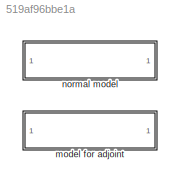
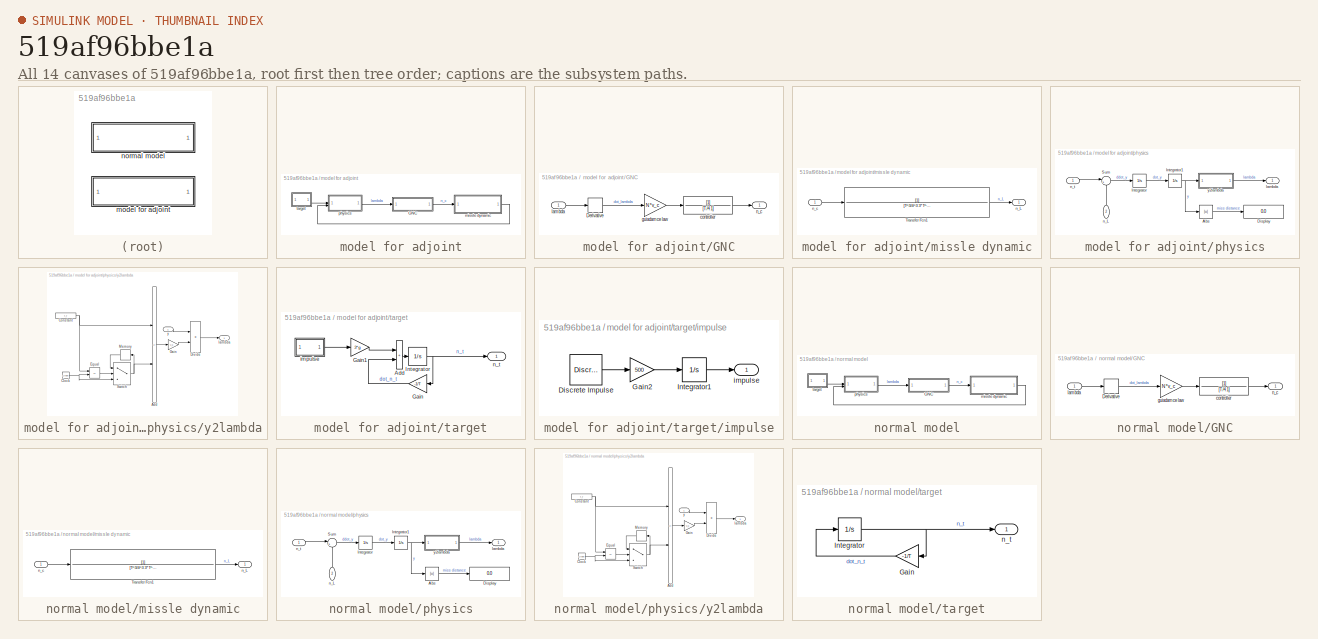
[diagram: thumbnail index - all 14 canvases of the model, root first then tree order]
MODEL slx_519af96bbe1a
KIND model
CONFIG AbsTol = auto
CONFIG EnableMultiTasking = off
CONFIG FixedStep = 0.002
CONFIG InitFcn = init;
CONFIG MaxStep = auto
CONFIG MinStep = auto
CONFIG RelTol = 1e-3
CONFIG SampleTimeConstraint = Unconstrained
CONFIG SolverName = ode4
CONFIG StartTime = 0.0
CONFIG StopTime = 15
BLOCK [SubSystem] model for adjoint
BLOCK [SubSystem] model for adjoint/GNC
BLOCK [Derivative] model for adjoint/GNC/Derivative
BLOCK [TransferFcn] model for adjoint/GNC/controller
  Denominator = [T/4 1]
BLOCK [Gain] model for adjoint/GNC/guiadamce law
  Gain = N*v_c
BLOCK [Inport] model for adjoint/GNC/lambda
BLOCK [Outport] model for adjoint/GNC/n_c
BLOCK [SubSystem] model for adjoint/missle dynamic
BLOCK [TransferFcn] model for adjoint/missle dynamic/Transfer Fcn1
  Denominator = [T^3/4^3 3*T^2/4^2 3*T/4 1]
BLOCK [Outport] model for adjoint/missle dynamic/n_L
BLOCK [Inport] model for adjoint/missle dynamic/n_c
BLOCK [SubSystem] model for adjoint/physics
BLOCK [Abs] model for adjoint/physics/Abs
  SaturateOnIntegerOverflow = off
BLOCK [Display] model for adjoint/physics/Display
  Decimation = 1
BLOCK [Integrator] model for adjoint/physics/Integrator
BLOCK [Integrator] model for adjoint/physics/Integrator1
BLOCK [Sum] model for adjoint/physics/Sum
  Inputs = |+-
BLOCK [Outport] model for adjoint/physics/lambda
BLOCK [Inport] model for adjoint/physics/n_L
  NameLocation = right
  Port = 2
BLOCK [Inport] model for adjoint/physics/n_t
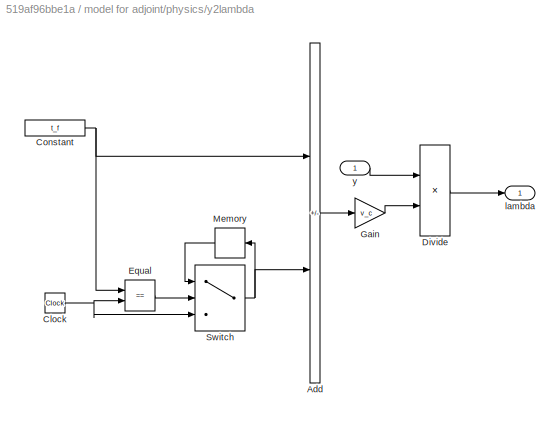
BLOCK [SubSystem] model for adjoint/physics/y2lambda
BLOCK [Sum] model for adjoint/physics/y2lambda/Add
  IconShape = rectangular
  Inputs = +-
BLOCK [Clock] model for adjoint/physics/y2lambda/Clock
BLOCK [Constant] model for adjoint/physics/y2lambda/Constant
  Value = t_f
BLOCK [Product] model for adjoint/physics/y2lambda/Divide
  Inputs = */
BLOCK [RelationalOperator] model for adjoint/physics/y2lambda/Equal
  InputSameDT = off
  Operator = ==
  OutDataTypeStr = boolean
  RndMeth = Simplest
BLOCK [Gain] model for adjoint/physics/y2lambda/Gain
  Gain = v_c
BLOCK [Memory] model for adjoint/physics/y2lambda/Memory
  NameLocation = top
BLOCK [Switch] model for adjoint/physics/y2lambda/Switch
  Criteria = u2 > Threshold
  InputSameDT = off
  SaturateOnIntegerOverflow = off
BLOCK [Outport] model for adjoint/physics/y2lambda/lambda
BLOCK [Inport] model for adjoint/physics/y2lambda/y
BLOCK [SubSystem] model for adjoint/target
BLOCK [Sum] model for adjoint/target/Add
  IconShape = rectangular
BLOCK [Gain] model for adjoint/target/Gain
  Gain = -1/T
  NameLocation = top
BLOCK [Gain] model for adjoint/target/Gain1
  Gain = 3*g
BLOCK [Integrator] model for adjoint/target/Integrator
BLOCK [SubSystem] model for adjoint/target/impulse
BLOCK [Reference] model for adjoint/target/impulse/Discrete Impulse  REF=dspsrcs4/Discrete 
Impulse
  SourceBlock = dspsrcs4/Discrete \nImpulse
  SourceType = Discrete Impulse
BLOCK [Gain] model for adjoint/target/impulse/Gain2
  Gain = 500
BLOCK [Integrator] model for adjoint/target/impulse/Integrator1
BLOCK [Outport] model for adjoint/target/impulse/impulse
BLOCK [Outport] model for adjoint/target/n_t
BLOCK [SubSystem] normal model
BLOCK [SubSystem] normal model/GNC
BLOCK [Derivative] normal model/GNC/Derivative
BLOCK [TransferFcn] normal model/GNC/controller
  Denominator = [T/4 1]
BLOCK [Gain] normal model/GNC/guiadamce law
  Gain = N*v_c
BLOCK [Inport] normal model/GNC/lambda
BLOCK [Outport] normal model/GNC/n_c
BLOCK [SubSystem] normal model/missle dynamic
BLOCK [TransferFcn] normal model/missle dynamic/Transfer Fcn1
  Denominator = [T^3/4^3 3*T^2/4^2 3*T/4 1]
BLOCK [Outport] normal model/missle dynamic/n_L
BLOCK [Inport] normal model/missle dynamic/n_c
BLOCK [SubSystem] normal model/physics
BLOCK [Abs] normal model/physics/Abs
  SaturateOnIntegerOverflow = off
BLOCK [Display] normal model/physics/Display
  Decimation = 1
BLOCK [Integrator] normal model/physics/Integrator
BLOCK [Integrator] normal model/physics/Integrator1
BLOCK [Sum] normal model/physics/Sum
  Inputs = |+-
BLOCK [Outport] normal model/physics/lambda
BLOCK [Inport] normal model/physics/n_L
  NameLocation = right
  Port = 2
BLOCK [Inport] normal model/physics/n_t
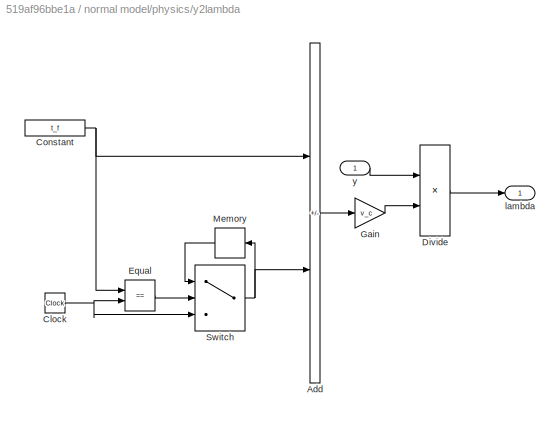
BLOCK [SubSystem] normal model/physics/y2lambda
BLOCK [Sum] normal model/physics/y2lambda/Add
  IconShape = rectangular
  Inputs = +-
BLOCK [Clock] normal model/physics/y2lambda/Clock
BLOCK [Constant] normal model/physics/y2lambda/Constant
  Value = t_f
BLOCK [Product] normal model/physics/y2lambda/Divide
  Inputs = */
BLOCK [RelationalOperator] normal model/physics/y2lambda/Equal
  InputSameDT = off
  Operator = ==
  OutDataTypeStr = boolean
  RndMeth = Simplest
BLOCK [Gain] normal model/physics/y2lambda/Gain
  Gain = v_c
BLOCK [Memory] normal model/physics/y2lambda/Memory
  NameLocation = top
BLOCK [Switch] normal model/physics/y2lambda/Switch
  Criteria = u2 > Threshold
  InputSameDT = off
  SaturateOnIntegerOverflow = off
BLOCK [Outport] normal model/physics/y2lambda/lambda
BLOCK [Inport] normal model/physics/y2lambda/y
BLOCK [SubSystem] normal model/target
BLOCK [Gain] normal model/target/Gain
  Gain = -1/T
  NameLocation = top
BLOCK [Integrator] normal model/target/Integrator
  InitialCondition = 3*g
BLOCK [Outport] normal model/target/n_t
LINE model for adjoint/GNC/Derivative:1 -> model for adjoint/GNC/guiadamce law:1
LINE model for adjoint/GNC/controller:1 -> model for adjoint/GNC/n_c:1
LINE model for adjoint/GNC/guiadamce law:1 -> model for adjoint/GNC/controller:1
LINE model for adjoint/GNC/lambda:1 -> model for adjoint/GNC/Derivative:1
LINE model for adjoint/GNC:1 -> model for adjoint/missle dynamic:1
LINE model for adjoint/missle dynamic/Transfer Fcn1:1 -> model for adjoint/missle dynamic/n_L:1
LINE model for adjoint/missle dynamic/n_c:1 -> model for adjoint/missle dynamic/Transfer Fcn1:1
LINE model for adjoint/missle dynamic:1 -> model for adjoint/physics:2
LINE model for adjoint/physics/Abs:1 -> model for adjoint/physics/Display:1
NET model for adjoint/physics/Integrator1:1 -> model for adjoint/physics/Abs:1, model for adjoint/physics/y2lambda:1
LINE model for adjoint/physics/Integrator:1 -> model for adjoint/physics/Integrator1:1
LINE model for adjoint/physics/Sum:1 -> model for adjoint/physics/Integrator:1
LINE model for adjoint/physics/n_L:1 -> model for adjoint/physics/Sum:2
LINE model for adjoint/physics/n_t:1 -> model for adjoint/physics/Sum:1
LINE model for adjoint/physics/y2lambda/Add:1 -> model for adjoint/physics/y2lambda/Gain:1
NET model for adjoint/physics/y2lambda/Clock:1 -> model for adjoint/physics/y2lambda/Equal:2, model for adjoint/physics/y2lambda/Switch:3
NET model for adjoint/physics/y2lambda/Constant:1 -> model for adjoint/physics/y2lambda/Add:1, model for adjoint/physics/y2lambda/Equal:1
LINE model for adjoint/physics/y2lambda/Divide:1 -> model for adjoint/physics/y2lambda/lambda:1
LINE model for adjoint/physics/y2lambda/Equal:1 -> model for adjoint/physics/y2lambda/Switch:2
LINE model for adjoint/physics/y2lambda/Gain:1 -> model for adjoint/physics/y2lambda/Divide:2
LINE model for adjoint/physics/y2lambda/Memory:1 -> model for adjoint/physics/y2lambda/Switch:1
NET model for adjoint/physics/y2lambda/Switch:1 -> model for adjoint/physics/y2lambda/Add:2, model for adjoint/physics/y2lambda/Memory:1
LINE model for adjoint/physics/y2lambda/y:1 -> model for adjoint/physics/y2lambda/Divide:1
LINE model for adjoint/physics/y2lambda:1 -> model for adjoint/physics/lambda:1
LINE model for adjoint/physics:1 -> model for adjoint/GNC:1
LINE model for adjoint/target/Add:1 -> model for adjoint/target/Integrator:1
LINE model for adjoint/target/Gain1:1 -> model for adjoint/target/Add:1
LINE model for adjoint/target/Gain:1 -> model for adjoint/target/Add:2
NET model for adjoint/target/Integrator:1 -> model for adjoint/target/Gain:1, model for adjoint/target/n_t:1
LINE model for adjoint/target/impulse/Discrete Impulse:1 -> model for adjoint/target/impulse/Gain2:1
LINE model for adjoint/target/impulse/Gain2:1 -> model for adjoint/target/impulse/Integrator1:1
LINE model for adjoint/target/impulse/Integrator1:1 -> model for adjoint/target/impulse/impulse:1
LINE model for adjoint/target/impulse:1 -> model for adjoint/target/Gain1:1
LINE model for adjoint/target:1 -> model for adjoint/physics:1
LINE normal model/GNC/Derivative:1 -> normal model/GNC/guiadamce law:1
LINE normal model/GNC/controller:1 -> normal model/GNC/n_c:1
LINE normal model/GNC/guiadamce law:1 -> normal model/GNC/controller:1
LINE normal model/GNC/lambda:1 -> normal model/GNC/Derivative:1
LINE normal model/GNC:1 -> normal model/missle dynamic:1
LINE normal model/missle dynamic/Transfer Fcn1:1 -> normal model/missle dynamic/n_L:1
LINE normal model/missle dynamic/n_c:1 -> normal model/missle dynamic/Transfer Fcn1:1
LINE normal model/missle dynamic:1 -> normal model/physics:2
LINE normal model/physics/Abs:1 -> normal model/physics/Display:1
NET normal model/physics/Integrator1:1 -> normal model/physics/Abs:1, normal model/physics/y2lambda:1
LINE normal model/physics/Integrator:1 -> normal model/physics/Integrator1:1
LINE normal model/physics/Sum:1 -> normal model/physics/Integrator:1
LINE normal model/physics/n_L:1 -> normal model/physics/Sum:2
LINE normal model/physics/n_t:1 -> normal model/physics/Sum:1
LINE normal model/physics/y2lambda/Add:1 -> normal model/physics/y2lambda/Gain:1
NET normal model/physics/y2lambda/Clock:1 -> normal model/physics/y2lambda/Equal:2, normal model/physics/y2lambda/Switch:3
NET normal model/physics/y2lambda/Constant:1 -> normal model/physics/y2lambda/Add:1, normal model/physics/y2lambda/Equal:1
LINE normal model/physics/y2lambda/Divide:1 -> normal model/physics/y2lambda/lambda:1
LINE normal model/physics/y2lambda/Equal:1 -> normal model/physics/y2lambda/Switch:2
LINE normal model/physics/y2lambda/Gain:1 -> normal model/physics/y2lambda/Divide:2
LINE normal model/physics/y2lambda/Memory:1 -> normal model/physics/y2lambda/Switch:1
NET normal model/physics/y2lambda/Switch:1 -> normal model/physics/y2lambda/Add:2, normal model/physics/y2lambda/Memory:1
LINE normal model/physics/y2lambda/y:1 -> normal model/physics/y2lambda/Divide:1
LINE normal model/physics/y2lambda:1 -> normal model/physics/lambda:1
LINE normal model/physics:1 -> normal model/GNC:1
LINE normal model/target/Gain:1 -> normal model/target/Integrator:1
NET normal model/target/Integrator:1 -> normal model/target/Gain:1, normal model/target/n_t:1
LINE normal model/target:1 -> normal model/physics:1
note: NET lines group one-source signal fan-out (src -> all destinations, sorted); 1:1 wires keep LINE
